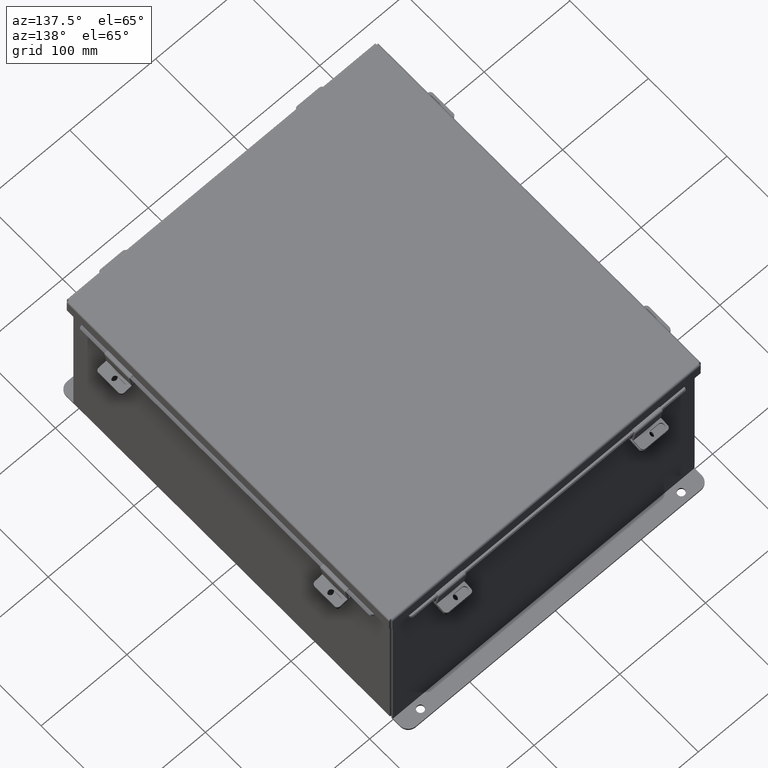
[diagram: clean part render]
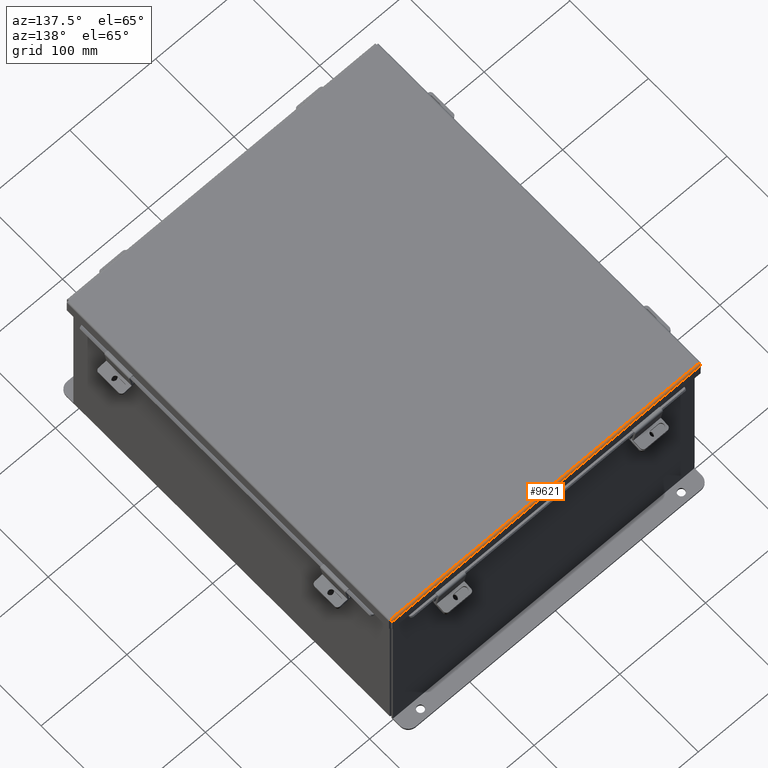
[diagram: same view with one face highlighted and labeled with its STEP entity id]
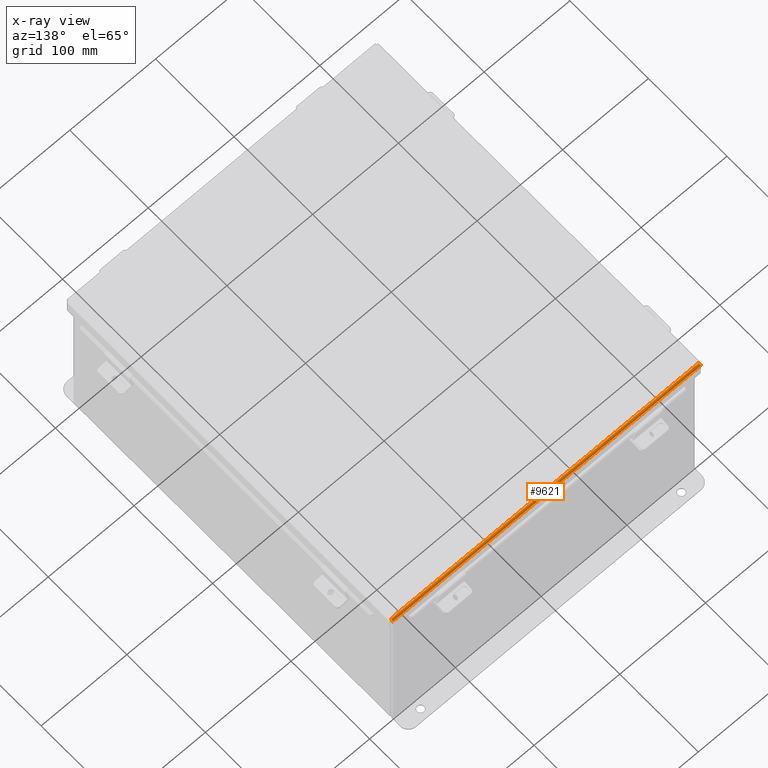
[diagram: x-ray of the same camera — body ghosted, the highlighted face saturated]
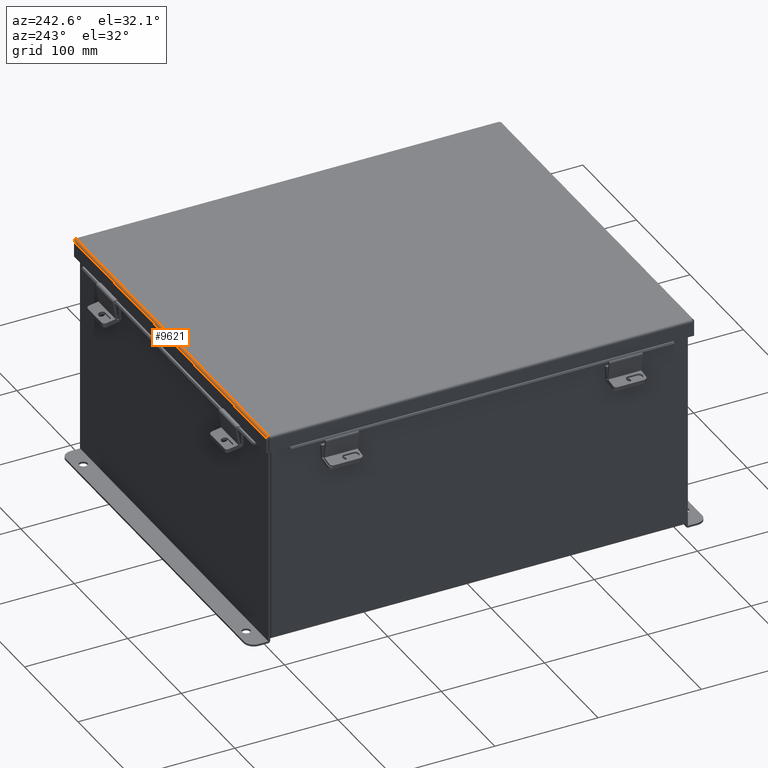
[diagram: same view with one face highlighted and labeled with its STEP entity id]
A machine part, auxiliary view. The second image highlights one B-rep face of the part: STEP entity #9621.
The next image is the same camera in x-ray: the body ghosted, the highlighted face saturated — about 0% of this face is hidden behind the body in this view.
A second angle (auxiliary view) of the same face is appended — the face is thin or edge-on in the first view.
In plain terms, the highlighted cylindrical surface (edge-blend (fillet) strip) has radius 2.2276 mm, axis along (1, -0, 0).
Its self-contained STEP definition (entity closure, byte-faithful):
#102 = EDGE_CURVE ( 'NONE', #8516, #3115, #5415, .T. ) ;
#292 = CARTESIAN_POINT ( 'NONE',  ( -7.073984854505805100, 8.156250000000000000, 0.001520096845007062900 ) ) ;
#350 = CARTESIAN_POINT ( 'NONE',  ( -7.072008543776428600, 8.138680782078321100, -0.04089574734180033400 ) ) ;
#354 = CARTESIAN_POINT ( 'NONE',  ( 7.069538155364727000, 8.091505289458311300, -0.07241740374381158700 ) ) ;
#1025 = CARTESIAN_POINT ( 'NONE',  ( 7.074478932188153400, 8.156250000000000000, 0.01300000000000010700 ) ) ;
#1039 = CARTESIAN_POINT ( 'NONE',  ( -7.071020388411740000, 8.122445747341801700, -0.05713078207832069500 ) ) ;
#1119 = CARTESIAN_POINT ( 'NONE',  ( 7.071020388411756000, 8.122445747341801700, -0.05713078207832070900 ) ) ;
#1337 = CARTESIAN_POINT ( 'NONE',  ( -7.068550000000025000, 8.068550000000000100, -0.07470000000000015500 ) ) ;
#1854 = CARTESIAN_POINT ( 'NONE',  ( 7.072502621458788500, 8.145181066258668800, -0.03116738457852815500 ) ) ;
#2153 = EDGE_CURVE ( 'NONE', #9684, #8516, #9140, .T. ) ;
#2540 = CARTESIAN_POINT ( 'NONE',  ( -7.074478932188148900, 8.156250000000000000, 0.01300000000000010700 ) ) ;
#2547 = CARTESIAN_POINT ( 'NONE',  ( 7.069044077682380400, 8.080029903154992300, -0.07470000000000029400 ) ) ;
#2574 = CARTESIAN_POINT ( 'NONE',  ( 7.073984854505825500, 8.156250000000001800, 0.001520096845007063500 ) ) ;
#2606 = CARTESIAN_POINT ( 'NONE',  ( -7.069044077682361800, 8.080029903154994000, -0.07470000000000032200 ) ) ;
#3115 = VERTEX_POINT ( 'NONE', #7235 ) ;
#3545 = ORIENTED_EDGE ( 'NONE', *, *, #2153, .F. ) ;
#3890 = EDGE_LOOP ( 'NONE', ( #7408, #3545, #9807, #7502 ) ) ;
#3907 = CARTESIAN_POINT ( 'NONE',  ( -7.074478932188148900, 8.156250000000000000, 0.01300000000000010700 ) ) ;
#3925 = VERTEX_POINT ( 'NONE', #1025 ) ;
#4478 = DIRECTION ( 'NONE',  ( 1.000000000000000000, 3.191323508412550700E-030, -0.0000000000000000000 ) ) ;
#4565 = B_SPLINE_CURVE_WITH_KNOTS ( 'NONE', 3,
 ( #7895, #2547, #354, #5616, #1119, #6408, #1854, #7148, #2574, #7928 ),
 .UNSPECIFIED., .F., .F.,
 ( 4, 2, 2, 2, 4 ),
 ( 0.0000000000000000000, 0.2500000000000000000, 0.5000000000000000000, 0.7500000000000000000, 1.000000000000000000 ),
 .UNSPECIFIED. ) ;
#4602 = DIRECTION ( 'NONE',  ( -1.000000000000000000, -3.215975411700707400E-030, 0.0000000000000000000 ) ) ;
#4668 = VECTOR ( 'NONE', #4857, 39.37007874015748100 ) ;
#4837 = EDGE_CURVE ( 'NONE', #9684, #3925, #6789, .T. ) ;
#4857 = DIRECTION ( 'NONE',  ( 1.000000000000000000, 3.215975411700707400E-030, -0.0000000000000000000 ) ) ;
#4969 = AXIS2_PLACEMENT_3D ( 'NONE', #8413, #4602, #6117 ) ;
#5290 = FACE_OUTER_BOUND ( 'NONE', #3890, .T. ) ;
#5415 = LINE ( 'NONE', #8260, #4668 ) ;
#5539 = CARTESIAN_POINT ( 'NONE',  ( -7.069538155364703900, 8.091505289458309500, -0.07241740374381157300 ) ) ;
#5613 = CARTESIAN_POINT ( 'NONE',  ( -7.073490776823462100, 8.153967403743811500, -0.009955289458309115500 ) ) ;
#5616 = CARTESIAN_POINT ( 'NONE',  ( 7.070526310729413800, 8.112717384578527200, -0.06363106625866869800 ) ) ;
#5757 = CARTESIAN_POINT ( 'NONE',  ( -7.068550000000025000, 8.068550000000000100, -0.07470000000000015500 ) ) ;
#6117 = DIRECTION ( 'NONE',  ( 0.0000000000000000000, 1.000000000000000000, -3.577373637655407700E-015 ) ) ;
#6408 = CARTESIAN_POINT ( 'NONE',  ( 7.072008543776448200, 8.138680782078321100, -0.04089574734180034100 ) ) ;
#6742 = CARTESIAN_POINT ( 'NONE',  ( 7.156250000000018700, 8.156250000000000000, 0.01300000000000010700 ) ) ;
#6789 = LINE ( 'NONE', #6742, #7028 ) ;
#7028 = VECTOR ( 'NONE', #4478, 39.37007874015748100 ) ;
#7078 = CARTESIAN_POINT ( 'NONE',  ( -7.070526310729394300, 8.112717384578529000, -0.06363106625866871100 ) ) ;
#7148 = CARTESIAN_POINT ( 'NONE',  ( 7.073490776823477200, 8.153967403743813200, -0.009955289458309117200 ) ) ;
#7182 = EDGE_CURVE ( 'NONE', #3115, #3925, #4565, .T. ) ;
#7235 = CARTESIAN_POINT ( 'NONE',  ( 7.068550000000009900, 8.068550000000000100, -0.07470000000000015500 ) ) ;
#7408 = ORIENTED_EDGE ( 'NONE', *, *, #102, .F. ) ;
#7502 = ORIENTED_EDGE ( 'NONE', *, *, #7182, .F. ) ;
#7895 = CARTESIAN_POINT ( 'NONE',  ( 7.068550000000009900, 8.068550000000000100, -0.07470000000000015500 ) ) ;
#7928 = CARTESIAN_POINT ( 'NONE',  ( 7.074478932188153400, 8.156250000000000000, 0.01300000000000010700 ) ) ;
#8260 = CARTESIAN_POINT ( 'NONE',  ( -7.074478932188157800, 8.068550000000000100, -0.07470000000000015500 ) ) ;
#8413 = CARTESIAN_POINT ( 'NONE',  ( -7.074478932188148900, 8.068550000000000100, 0.01300000000000010700 ) ) ;
#8516 = VERTEX_POINT ( 'NONE', #1337 ) ;
#8893 = CYLINDRICAL_SURFACE ( 'NONE', #4969, 0.08770000000000026400 ) ;
#9140 = B_SPLINE_CURVE_WITH_KNOTS ( 'NONE', 3,
 ( #2540, #292, #5613, #9462, #350, #1039, #7078, #5539, #2606, #5757 ),
 .UNSPECIFIED., .F., .F.,
 ( 4, 2, 2, 2, 4 ),
 ( 0.0000000000000000000, 0.2500000000000000000, 0.5000000000000000000, 0.7500000000000000000, 1.000000000000000000 ),
 .UNSPECIFIED. ) ;
#9462 = CARTESIAN_POINT ( 'NONE',  ( -7.072502621458771600, 8.145181066258665200, -0.03116738457852814100 ) ) ;
#9621 = ADVANCED_FACE ( 'NONE', ( #5290 ), #8893, .T. ) ;
#9684 = VERTEX_POINT ( 'NONE', #3907 ) ;
#9807 = ORIENTED_EDGE ( 'NONE', *, *, #4837, .T. ) ;